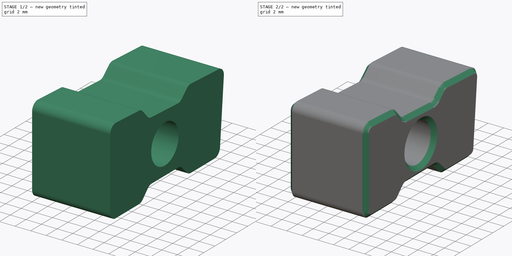
[diagram: build sequence overview — one tinted view per stage of 2, left to right]
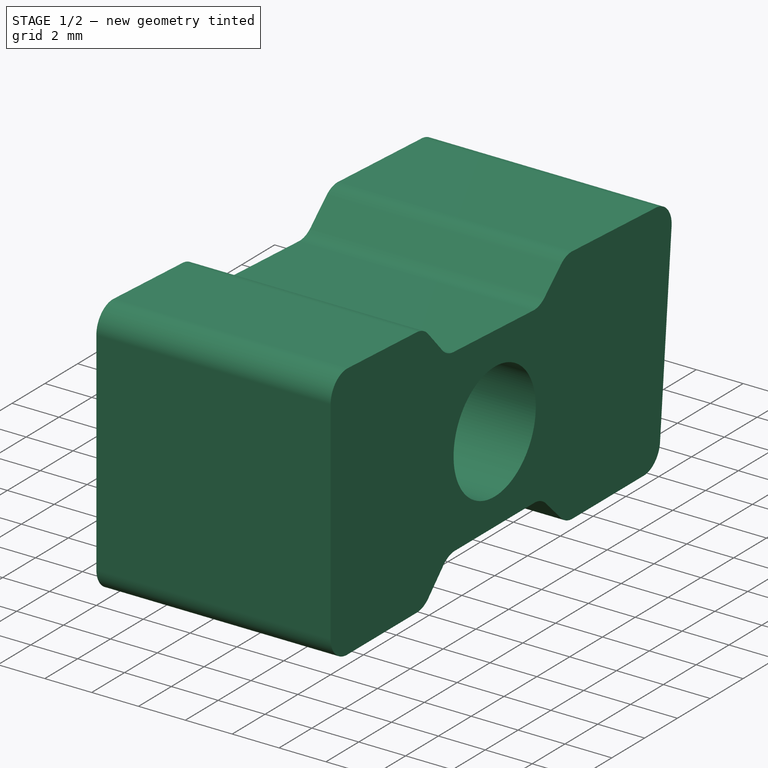
[diagram: stage 1 of 2 — iso view after this stage's code; geometry added in this stage tinted green]
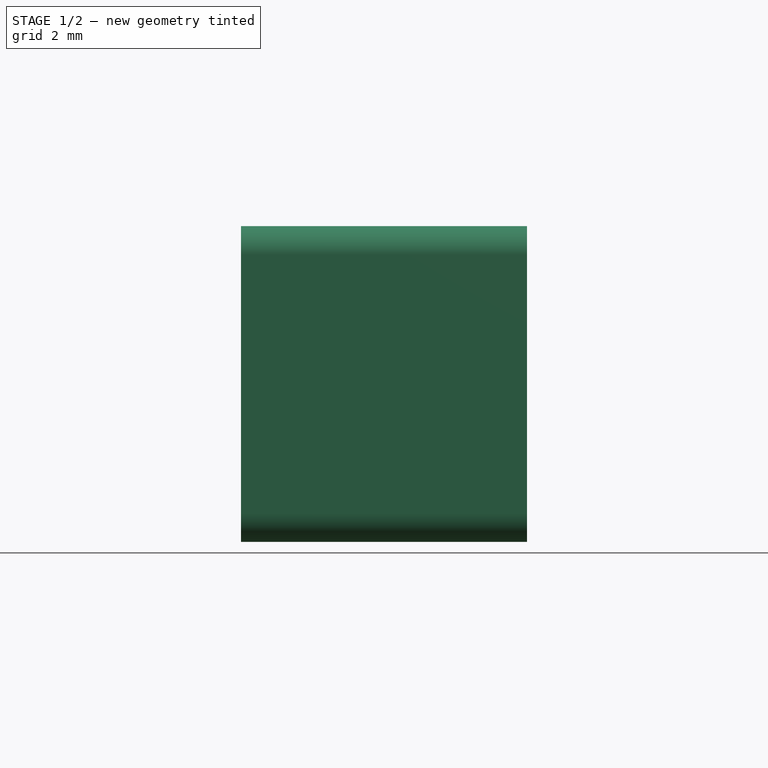
[diagram: stage 1 of 2 — front view after this stage's code; geometry added in this stage tinted green]
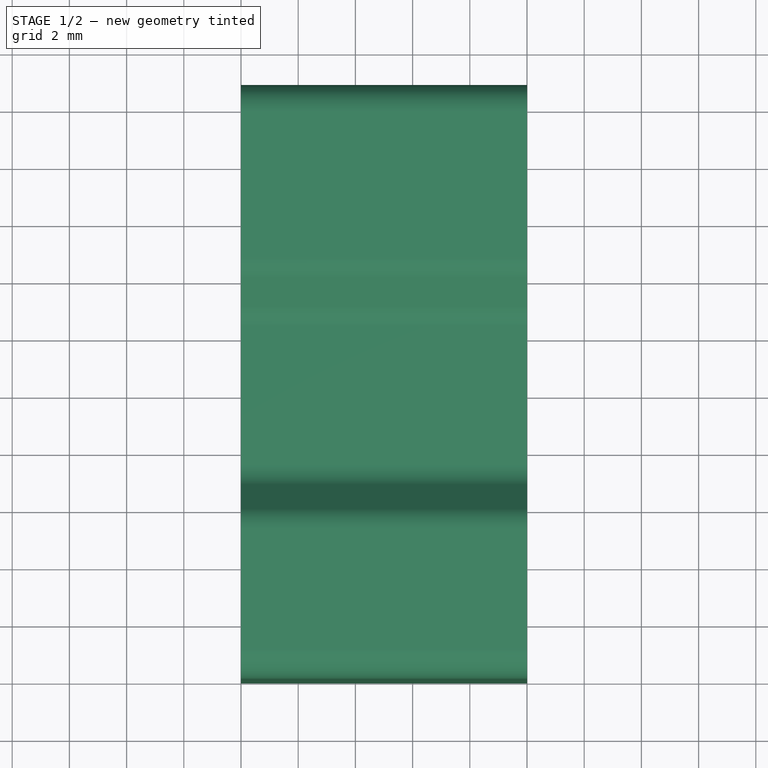
[diagram: stage 1 of 2 — top view after this stage's code; geometry added in this stage tinted green]
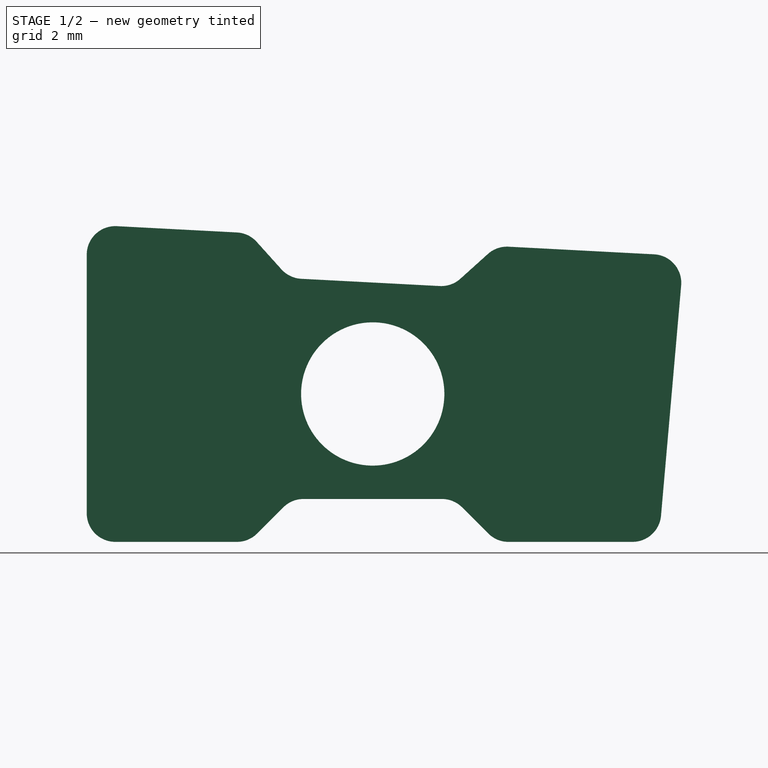
[diagram: stage 1 of 2 — right view after this stage's code; geometry added in this stage tinted green]
FCSTD DOCUMENT  (FreeCAD 1.0R39319 (Git))
Label: laptop_riser
License: All rights reserved
LicenseURL: http://en.wikipedia.org/wiki/All_rights_reserved
objects: Sketcher::SketchObject×1, PartDesign::Pad×1, PartDesign::Fillet×1, PartDesign::Chamfer×1, PartDesign::Body×1
note: 12 computed .brp shape members not serialized (recipe doc carries the construction recipe); baked Part::Feature solids carry a one-line shape summary decoded from their .brp

FEATURE [Sketcher::SketchObject] Sketch
  ArcFitTolerance = 1e-06
  AttachmentSupport = -> [YZ_Plane]
  FullyConstrained = true
  MakeInternals = false
  MapMode = 5
  Placement = pos=(0,0,0) rot=(0.57735,0.57735,0.57735;2.0944rad)
  sketch-geometry (32):
    g0: LineSegment [constr] StartX=20.8749 StartY=10 StartZ=0 EndX=0 EndY=11.094 EndZ=0
    g1: LineSegment StartX=0 StartY=0 StartZ=0 EndX=0 EndY=11.094 EndZ=0
    g2: LineSegment [constr] StartX=20.8749 StartY=10 StartZ=0 EndX=0 EndY=10 EndZ=0
    g3: LineSegment StartX=20.8749 StartY=10 StartZ=0 EndX=20 EndY=0 EndZ=0
    g4: LineSegment [constr] StartX=20 StartY=0 StartZ=0 EndX=20 EndY=10 EndZ=0
    g5: LineSegment [constr] StartX=20 StartY=10 StartZ=0 EndX=0 EndY=0 EndZ=0
    g6: LineSegment [constr] StartX=0 StartY=10 StartZ=0 EndX=20 EndY=0 EndZ=0
    g7: LineSegment StartX=0 StartY=0 StartZ=0 EndX=5.66667 EndY=0 EndZ=0
    g8: LineSegment [constr] StartX=5.66667 StartY=0 StartZ=0 EndX=5.66667 EndY=1.5 EndZ=0
    g9: LineSegment [constr] StartX=5.66667 StartY=1.5 StartZ=0 EndX=14.3333 EndY=1.5 EndZ=0
    g10: LineSegment [constr] StartX=14.3333 StartY=1.5 StartZ=0 EndX=14.3333 EndY=0 EndZ=0
    g11: LineSegment StartX=14.3333 StartY=0 StartZ=0 EndX=20 EndY=0 EndZ=0
    g12: LineSegment StartX=0 StartY=11.094 StartZ=0 EndX=5.66667 EndY=10.797 EndZ=0
    g13: LineSegment [constr] StartX=14.3333 StartY=8.84283 StartZ=0 EndX=14.3333 EndY=10.3428 EndZ=0
    g14: LineSegment StartX=14.3333 StartY=10.3428 StartZ=0 EndX=20.8749 EndY=10 EndZ=0
    g15: LineSegment [constr] StartX=5.66667 StartY=8.84283 StartZ=0 EndX=5.66667 EndY=5.17141 EndZ=0
    g16: LineSegment [constr] StartX=5.66667 StartY=1.5 StartZ=0 EndX=5.66667 EndY=5.17141 EndZ=0
    g17: LineSegment [constr] StartX=14.3333 StartY=8.84283 StartZ=0 EndX=14.3333 EndY=5.17141 EndZ=0
    g18: LineSegment [constr] StartX=14.3333 StartY=5.17141 StartZ=0 EndX=14.3333 EndY=1.5 EndZ=0
    g19: LineSegment [constr] StartX=5.66667 StartY=5.17141 StartZ=0 EndX=10 EndY=5.17141 EndZ=0
    g20: LineSegment [constr] StartX=10 StartY=5.17141 StartZ=0 EndX=14.3333 EndY=5.17141 EndZ=0
    g21: Circle CenterX=10 CenterY=5.17141 CenterZ=0 NormalX=0 NormalY=0 NormalZ=1 AngleXU=0 Radius=2.505
    g22: LineSegment [constr] StartX=5.66667 StartY=10.797 StartZ=0 EndX=5.66667 EndY=8.84283 EndZ=0
    g23: LineSegment [constr] StartX=5.66667 StartY=10.797 StartZ=0 EndX=5.58816 EndY=9.29908 EndZ=0
    g24: LineSegment [constr] StartX=5.58816 StartY=9.29908 StartZ=0 EndX=14.2548 EndY=8.84488 EndZ=0
    g25: LineSegment [constr] StartX=14.2548 StartY=8.84488 StartZ=0 EndX=14.3333 EndY=10.3428 EndZ=0
    g26: LineSegment StartX=5.66667 StartY=10.797 StartZ=0 EndX=7.08611 EndY=9.22058 EndZ=0
    g27: LineSegment StartX=7.08611 StartY=9.22058 StartZ=0 EndX=12.7569 EndY=8.92339 EndZ=0
    g28: LineSegment StartX=12.7569 StartY=8.92339 StartZ=0 EndX=14.3333 EndY=10.3428 EndZ=0
    g29: LineSegment StartX=5.66667 StartY=0 StartZ=0 EndX=7.16667 EndY=1.5 EndZ=0
    g30: LineSegment StartX=7.16667 StartY=1.5 StartZ=0 EndX=12.8333 EndY=1.5 EndZ=0
    g31: LineSegment StartX=12.8333 StartY=1.5 StartZ=0 EndX=14.3333 EndY=0 EndZ=0
  constraints (86):
    c: PointOnObject(g3,g-1)
    c: DistanceX(g1,g3) = 20
    c: Coincident(g1,g0)
    c: Vertical(g1)
    c: PointOnObject(g2,g1)
    c: Horizontal(g2)
    c: Angle(g0,g2) = 0.0523599
    c: Coincident(g2,g0)
    c: Coincident(g3,g0)
    c: PointOnObject(g4,g2)
    c: Vertical(g4)
    c: Angle(g3,g4) = 0.0872665
    c: Coincident(g5,g4)
    c: Coincident(g6,g2)
    c: DistanceY(g4,g4) = 10
    c: Coincident(g7,g1)
    c: PointOnObject(g7,g-1)
    c: Coincident(g8,g7)
    c: Coincident(g9,g8)
    c: Horizontal(g9)
    c: Coincident(g10,g9)
    c: PointOnObject(g10,g-1)
    c: Coincident(g11,g10)
    c: Coincident(g11,g3)
    c: Vertical(g8)
    c: Vertical(g10)
    c: Coincident(g1,g5)
    c: Coincident(g-1,g1)
    c: Distance(g7,g9) = 1.5
    c: Coincident(g12,g0)
    c: PointOnObject(g12,g0)
    c: PointOnObject(g13,g0)
    c: Coincident(g14,g13)
    c: Coincident(g14,g0)
    c: Vertical(g13)
    c: Equal(g13,g10)
    c: Coincident(g6,g3)
    c: Coincident(g4,g3)
    c: Coincident(g16,g8)
    c: Coincident(g16,g15)
    c: Vertical(g17)
    c: Coincident(g18,g17)
    c: Coincident(g18,g9)
    c: Vertical(g18)
    c: Vertical(g15)
    c: Vertical(g16)
    c: Equal(g16,g15)
    c: Equal(g15,g17)
    c: Coincident(g19,g15)
    c: Coincident(g20,g19)
    c: Coincident(g20,g17)
    c: Diameter(g21) = 5.01
    c: Coincident(g21,g19)
    c: Equal(g19,g20)
    c: Horizontal(g19)
    c: Coincident(g22,g12)
    c: Coincident(g22,g15)
    c: Vertical(g22)
    c: Horizontal(g20)
    c: Coincident(g17,g13)
    c: Coincident(g23,g12)
    c: Coincident(g24,g23)
    c: Coincident(g25,g24)
    c: Coincident(g25,g13)
    c: Perpendicular(g14,g25)
    c: Perpendicular(g25,g24)
    c: Perpendicular(g12,g23)
    c: Equal(g23,g8)
    c: Coincident(g26,g12)
    c: PointOnObject(g26,g24)
    c: Coincident(g27,g26)
    c: PointOnObject(g27,g24)
    c: Coincident(g28,g27)
    c: Coincident(g28,g13)
    c: Equal(g28,g26)
    c: Angle(g26,g24) = 0.785398
    c: Coincident(g29,g7)
    c: PointOnObject(g29,g9)
    c: Coincident(g30,g29)
    c: PointOnObject(g30,g9)
    c: Coincident(g31,g30)
    c: Coincident(g31,g10)
    c: Equal(g31,g29)
    c: Angle(g29,g8) = 0.785398
    c: Equal(g7,g30)
    c: Equal(g30,g11)
FEATURE [PartDesign::Pad] Pad
  Direction = (1,0,0)
  Length = 10
  Length2 = 10
  Placement = pos=(0,0,0) rot=(1,1,1;2.0944rad)
  Profile = -> Sketch
  ReferenceAxis = -> Sketch [N_Axis]
  Refine = true
  Suppressed = false
  Type = 0
FEATURE [PartDesign::Fillet] Fillet
  Base = -> Pad [Edge5,Edge8,Edge11,Edge14,Edge17,Edge20,Edge1,Edge2,Edge32,Edge29,Edge26,Edge23]
  BaseFeature = -> Pad
  Placement = pos=(0,0,0) rot=(1,1,1;2.0944rad)
  Radius = 1
  Refine = true
  SupportTransform = false
  Suppressed = false
  UseAllEdges = false
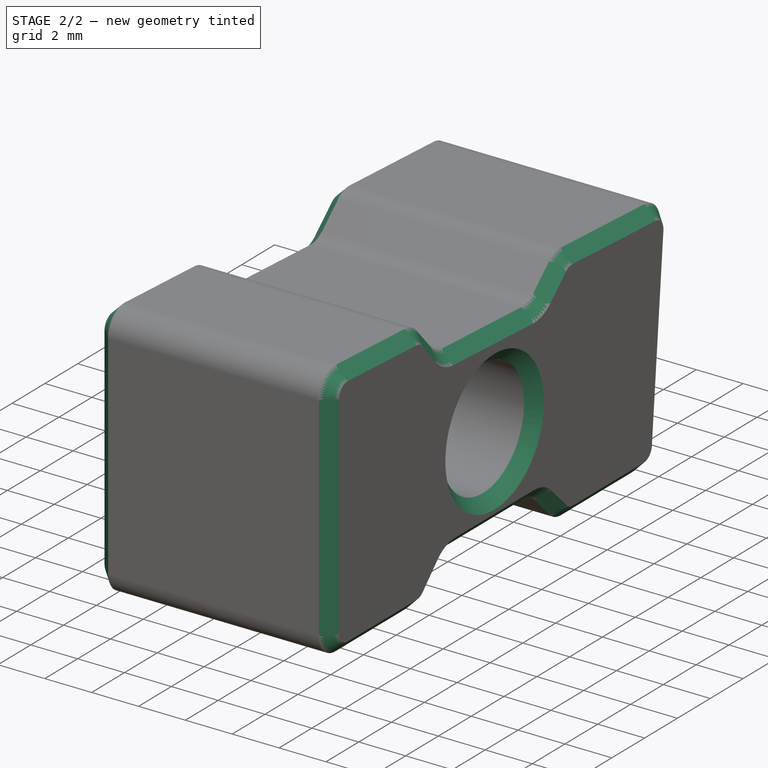
[diagram: stage 2 of 2 — iso view after this stage's code; geometry added in this stage tinted green]
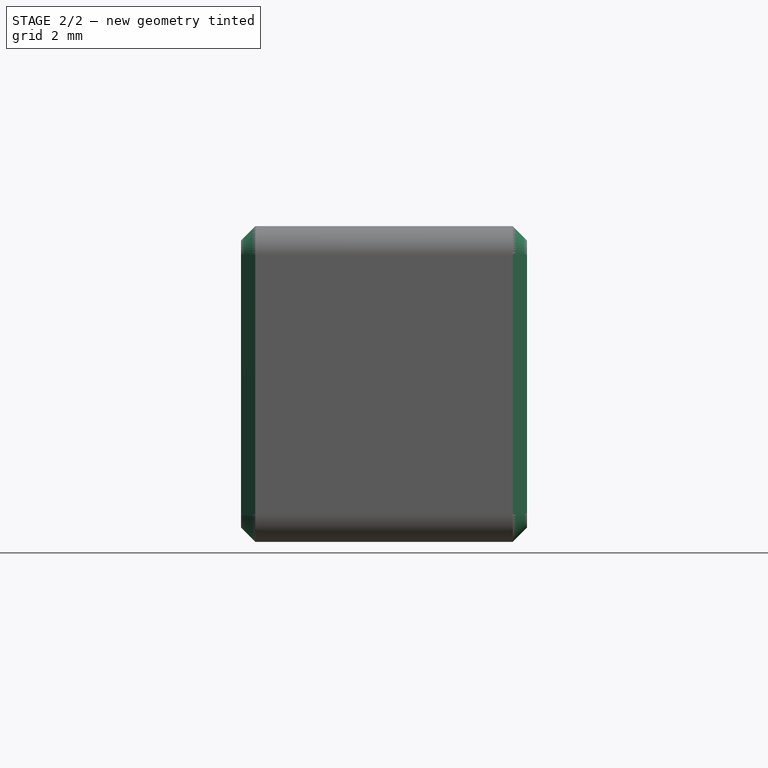
[diagram: stage 2 of 2 — front view after this stage's code; geometry added in this stage tinted green]
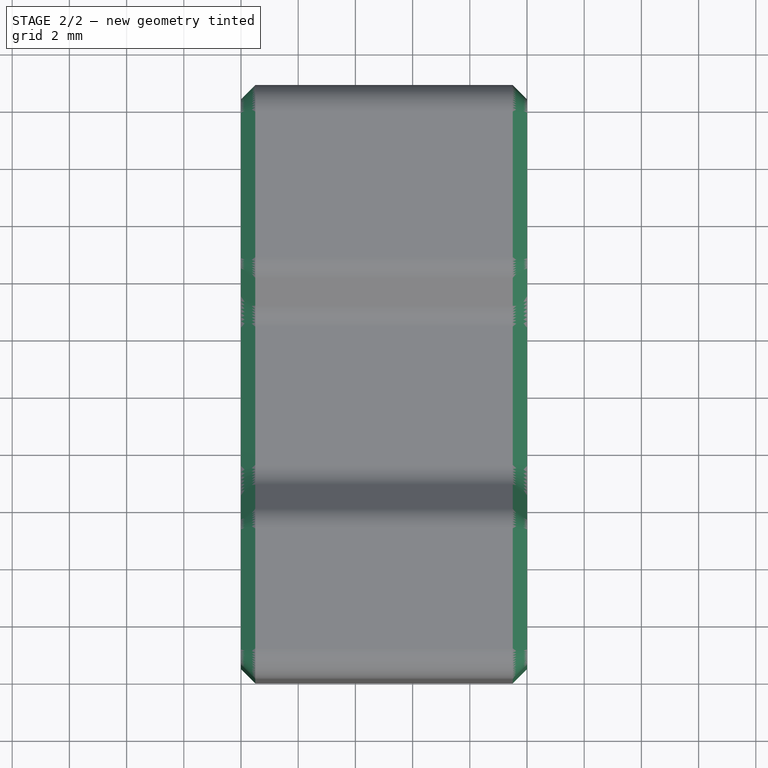
[diagram: stage 2 of 2 — top view after this stage's code; geometry added in this stage tinted green]
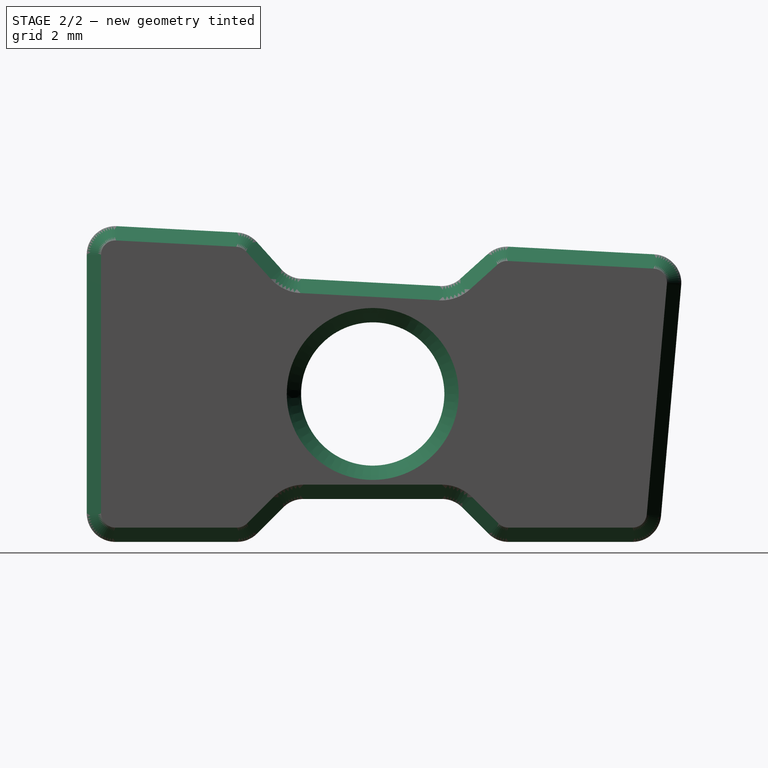
[diagram: stage 2 of 2 — right view after this stage's code; geometry added in this stage tinted green]
FEATURE [PartDesign::Chamfer] Chamfer
  Angle = 45
  Base = -> Fillet [Face2,Face5]
  BaseFeature = -> Fillet
  ChamferType = 0
  FlipDirection = false
  Placement = pos=(0,0,0) rot=(1,1,1;2.0944rad)
  Refine = true
  Size = 0.5
  Size2 = 1
  SupportTransform = false
  Suppressed = false
  UseAllEdges = false
FEATURE [PartDesign::Body] Body  label="riser_body"
  AllowCompound = false
  Group = -> [Sketch,Pad,Fillet,Chamfer]
  Origin = -> Origin
  Tip = -> Chamfer
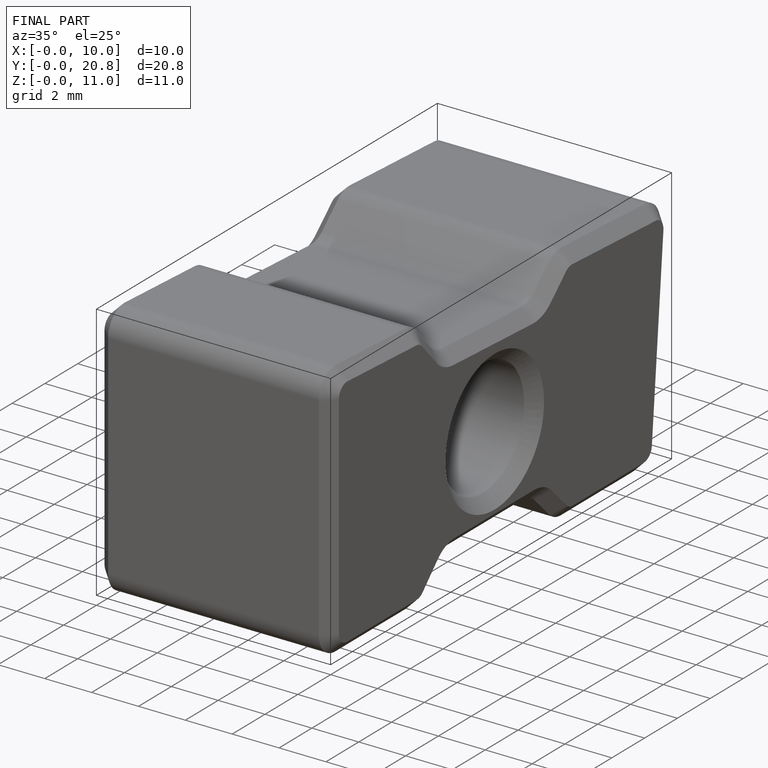
[diagram: finished part — iso view with bounding-box wireframe]
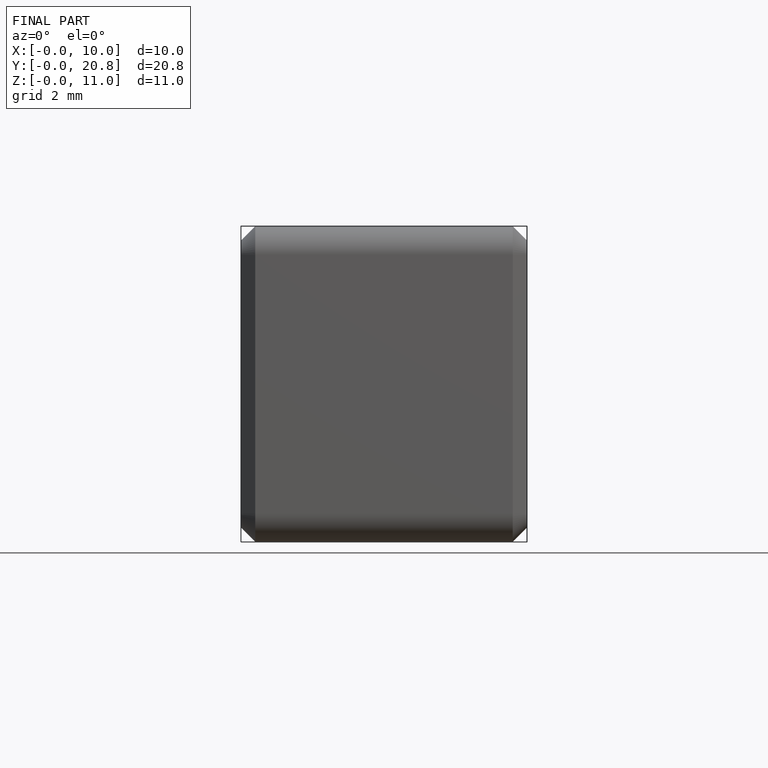
[diagram: finished part — front view with bounding-box wireframe]
